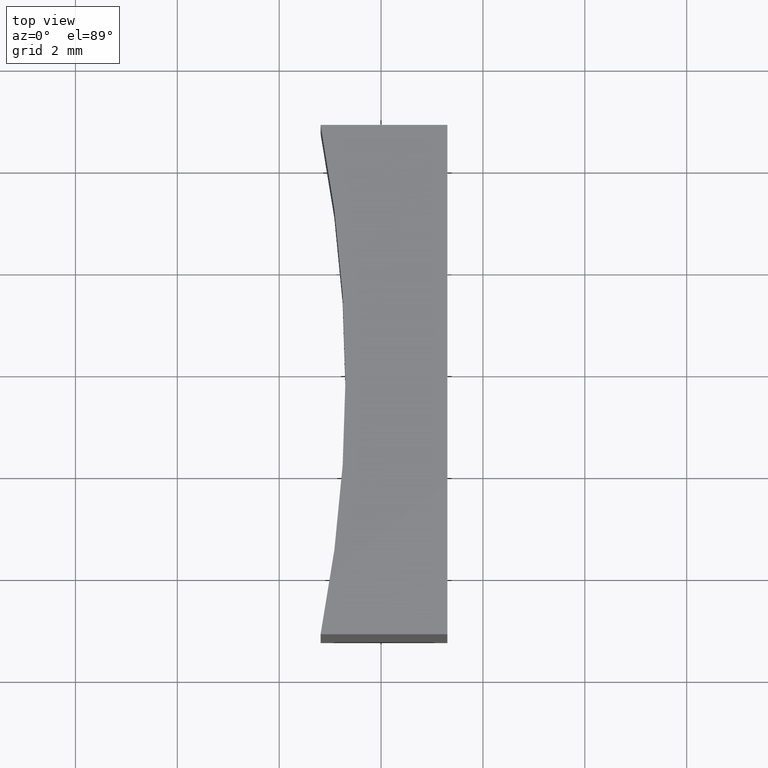
[diagram: clean part render]
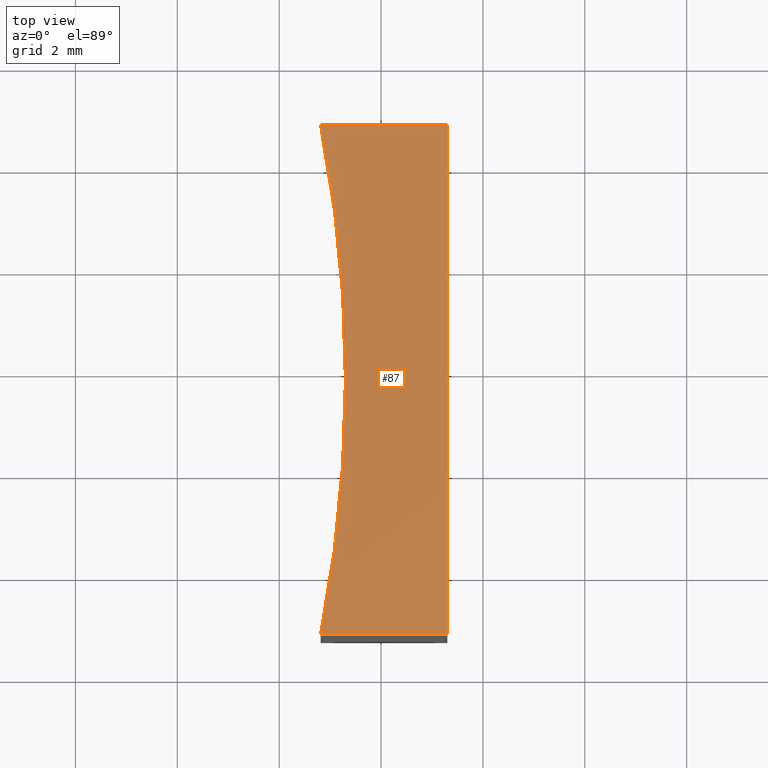
[diagram: same view with one face highlighted and labeled with its STEP entity id]
A machine part, top view. The second image highlights one B-rep face of the part: STEP entity #87.
In plain terms, the highlighted planar face has unit normal (0, 0, 1).
Its self-contained STEP definition (entity closure, byte-faithful):
#14 = EDGE_LOOP ( 'NONE', ( #26, #127, #171, #172 ) ) ;
#21 = VECTOR ( 'NONE', #221, 1000.000000000000000 ) ;
#26 = ORIENTED_EDGE ( 'NONE', *, *, #215, .T. ) ;
#31 = PLANE ( 'NONE',  #89 ) ;
#32 = DIRECTION ( 'NONE',  ( 1.000000000000000000, 0.000000000000000000, 0.000000000000000000 ) ) ;
#36 = CARTESIAN_POINT ( 'NONE',  ( 8.812458246586677646, -1.232378242209244856, 10.00000000000000000 ) ) ;
#51 = DIRECTION ( 'NONE',  ( -0.000000000000000000, -0.000000000000000000, -1.000000000000000000 ) ) ;
#54 = DIRECTION ( 'NONE',  ( 0.000000000000000000, 0.000000000000000000, 1.000000000000000000 ) ) ;
#57 = FACE_OUTER_BOUND ( 'NONE', #14, .T. ) ;
#68 = VERTEX_POINT ( 'NONE', #201 ) ;
#69 = VECTOR ( 'NONE', #146, 1000.000000000000000 ) ;
#75 = DIRECTION ( 'NONE',  ( 1.000000000000000000, 0.000000000000000000, -0.000000000000000000 ) ) ;
#87 = ADVANCED_FACE ( 'NONE', ( #57 ), #31, .T. ) ;
#89 = AXIS2_PLACEMENT_3D ( 'NONE', #200, #54, #75 ) ;
#94 = CARTESIAN_POINT ( 'NONE',  ( 8.812458246586681199, -11.23237824220924530, 10.00000000000000000 ) ) ;
#99 = LINE ( 'NONE', #94, #21 ) ;
#107 = VERTEX_POINT ( 'NONE', #237 ) ;
#117 = EDGE_CURVE ( 'NONE', #68, #214, #99, .T. ) ;
#127 = ORIENTED_EDGE ( 'NONE', *, *, #117, .T. ) ;
#128 = LINE ( 'NONE', #143, #69 ) ;
#143 = CARTESIAN_POINT ( 'NONE',  ( 11.30245824658667786, -1.232378242209244856, 10.00000000000000000 ) ) ;
#146 = DIRECTION ( 'NONE',  ( -1.734723475976807094E-16, 1.000000000000000000, -0.000000000000000000 ) ) ;
#147 = LINE ( 'NONE', #36, #227 ) ;
#160 = CARTESIAN_POINT ( 'NONE',  ( 8.812458246586677646, -1.232378242209244856, 10.00000000000000000 ) ) ;
#164 = EDGE_CURVE ( 'NONE', #107, #193, #147, .T. ) ;
#166 = AXIS2_PLACEMENT_3D ( 'NONE', #177, #51, #32 ) ;
#171 = ORIENTED_EDGE ( 'NONE', *, *, #207, .T. ) ;
#172 = ORIENTED_EDGE ( 'NONE', *, *, #164, .T. ) ;
#177 = CARTESIAN_POINT ( 'NONE',  ( -16.54937331187928606, -6.232378242209254182, 10.00000000000000000 ) ) ;
#182 = DIRECTION ( 'NONE',  ( -1.000000000000000000, -0.000000000000000000, -0.000000000000000000 ) ) ;
#193 = VERTEX_POINT ( 'NONE', #160 ) ;
#198 = CIRCLE ( 'NONE', #166, 25.85000000000000497 ) ;
#200 = CARTESIAN_POINT ( 'NONE',  ( -16.54937331187928606, -6.232378242209254182, 10.00000000000000000 ) ) ;
#201 = CARTESIAN_POINT ( 'NONE',  ( 8.812458246586681199, -11.23237824220924530, 10.00000000000000000 ) ) ;
#207 = EDGE_CURVE ( 'NONE', #214, #107, #128, .T. ) ;
#214 = VERTEX_POINT ( 'NONE', #216 ) ;
#215 = EDGE_CURVE ( 'NONE', #193, #68, #198, .T. ) ;
#216 = CARTESIAN_POINT ( 'NONE',  ( 11.30245824658667964, -11.23237824220924530, 10.00000000000000000 ) ) ;
#221 = DIRECTION ( 'NONE',  ( 1.000000000000000000, 0.000000000000000000, 0.000000000000000000 ) ) ;
#227 = VECTOR ( 'NONE', #182, 1000.000000000000000 ) ;
#237 = CARTESIAN_POINT ( 'NONE',  ( 11.30245824658667786, -1.232378242209244856, 10.00000000000000000 ) ) ;